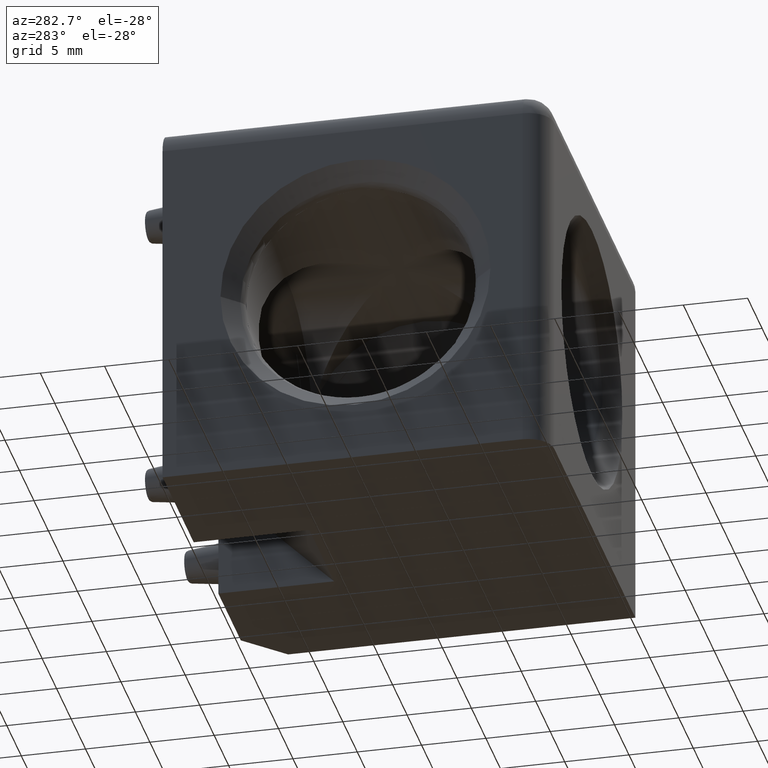
[diagram: clean part render]
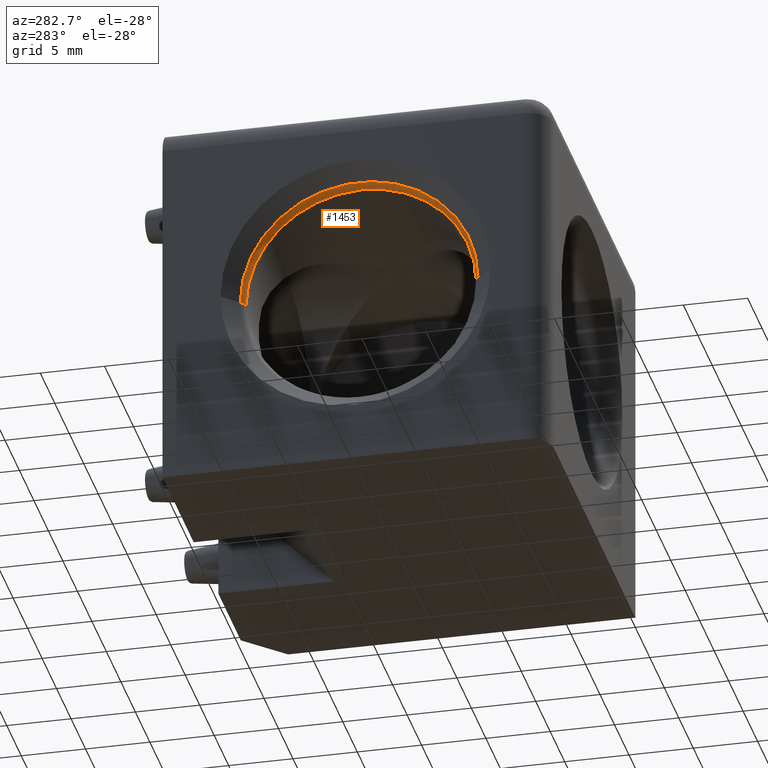
[diagram: same view with one face highlighted and labeled with its STEP entity id]
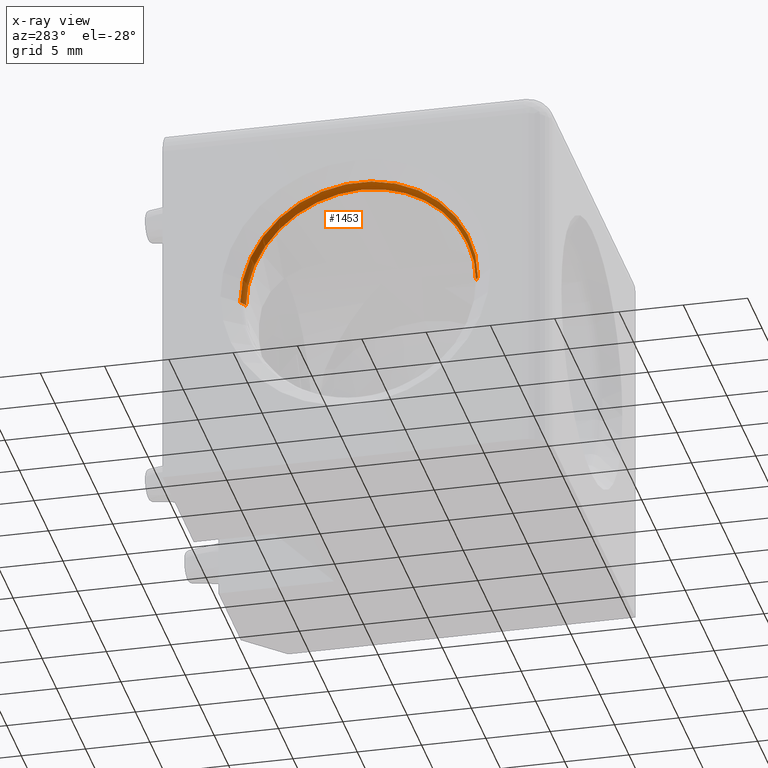
[diagram: x-ray of the same camera — body ghosted, the highlighted face saturated]
A machine part, auxiliary view. The second image highlights one B-rep face of the part: STEP entity #1453.
The next image is the same camera in x-ray: the body ghosted, the highlighted face saturated — about 0% of this face is hidden behind the body in this view.
In plain terms, the highlighted toroidal blend (fillet) surface has major radius 9.9489 mm and minor (blend) radius 1 mm.
Its self-contained STEP definition (entity closure, byte-faithful):
#17=TOROIDAL_SURFACE('',#1605,9.94887868760296,1.);
#296=FACE_OUTER_BOUND('',#404,.T.);
#404=EDGE_LOOP('',(#1113,#1114,#1115,#1116,#1117));
#498=CIRCLE('',#1573,8.94922136262741);
#515=CIRCLE('',#1595,8.94922136262741);
#521=CIRCLE('',#1606,1.);
#522=CIRCLE('',#1607,9.24177190641642);
#523=CIRCLE('',#1608,0.999999999999999);
#632=VERTEX_POINT('',#2535);
#633=VERTEX_POINT('',#2537);
#665=VERTEX_POINT('',#2612);
#671=VERTEX_POINT('',#2634);
#672=VERTEX_POINT('',#2636);
#786=EDGE_CURVE('',#632,#633,#498,.T.);
#825=EDGE_CURVE('',#665,#632,#515,.T.);
#835=EDGE_CURVE('',#665,#671,#521,.T.);
#836=EDGE_CURVE('',#672,#671,#522,.T.);
#837=EDGE_CURVE('',#633,#672,#523,.T.);
#1113=ORIENTED_EDGE('',*,*,#825,.F.);
#1114=ORIENTED_EDGE('',*,*,#835,.T.);
#1115=ORIENTED_EDGE('',*,*,#836,.F.);
#1116=ORIENTED_EDGE('',*,*,#837,.F.);
#1117=ORIENTED_EDGE('',*,*,#786,.F.);
#1453=ADVANCED_FACE('',(#296),#17,.T.);
#1573=AXIS2_PLACEMENT_3D('',#2538,#1852,#1853);
#1595=AXIS2_PLACEMENT_3D('',#2614,#1918,#1919);
#1605=AXIS2_PLACEMENT_3D('',#2633,#1942,#1943);
#1606=AXIS2_PLACEMENT_3D('',#2635,#1944,#1945);
#1607=AXIS2_PLACEMENT_3D('',#2637,#1946,#1947);
#1608=AXIS2_PLACEMENT_3D('',#2638,#1948,#1949);
#1852=DIRECTION('center_axis',(-1.,0.,0.));
#1853=DIRECTION('ref_axis',(0.,0.,1.));
#1918=DIRECTION('center_axis',(-1.,0.,0.));
#1919=DIRECTION('ref_axis',(0.,0.,1.));
#1942=DIRECTION('center_axis',(1.,-1.51417776287149E-18,0.));
#1943=DIRECTION('ref_axis',(0.,1.,0.));
#1944=DIRECTION('center_axis',(1.85433295064067E-34,1.22464679914735E-16,
1.));
#1945=DIRECTION('ref_axis',(0.,-1.,1.22464679914735E-16));
#1946=DIRECTION('center_axis',(1.,0.,0.));
#1947=DIRECTION('ref_axis',(0.,-1.,0.));
#1948=DIRECTION('center_axis',(0.,0.,-1.));
#1949=DIRECTION('ref_axis',(-1.,0.,0.));
#2535=CARTESIAN_POINT('',(-13.0608420735377,0.,8.94922136262741));
#2537=CARTESIAN_POINT('',(-13.0608420735377,8.94922136262741,0.));
#2538=CARTESIAN_POINT('Origin',(-13.0608420735377,1.17964661258825E-17,
0.));
#2612=CARTESIAN_POINT('',(-13.0608420735377,-8.94922136262741,1.11387708401228E-15));
#2614=CARTESIAN_POINT('Origin',(-13.0608420735377,1.17964661258825E-17,
0.));
#2633=CARTESIAN_POINT('Origin',(-13.0346651252299,1.17568295728548E-17,
0.));
#2634=CARTESIAN_POINT('',(-13.7417719064164,-9.24177190641642,0.));
#2635=CARTESIAN_POINT('Origin',(-13.0346651252299,-9.94887868760296,1.21838624398783E-15));
#2636=CARTESIAN_POINT('',(-13.7417719064164,9.24177190641642,1.2088348887345E-15));
#2637=CARTESIAN_POINT('Origin',(-13.7417719064164,1.28275149369032E-17,
0.));
#2638=CARTESIAN_POINT('Origin',(-13.0346651252299,9.94887868760296,0.));